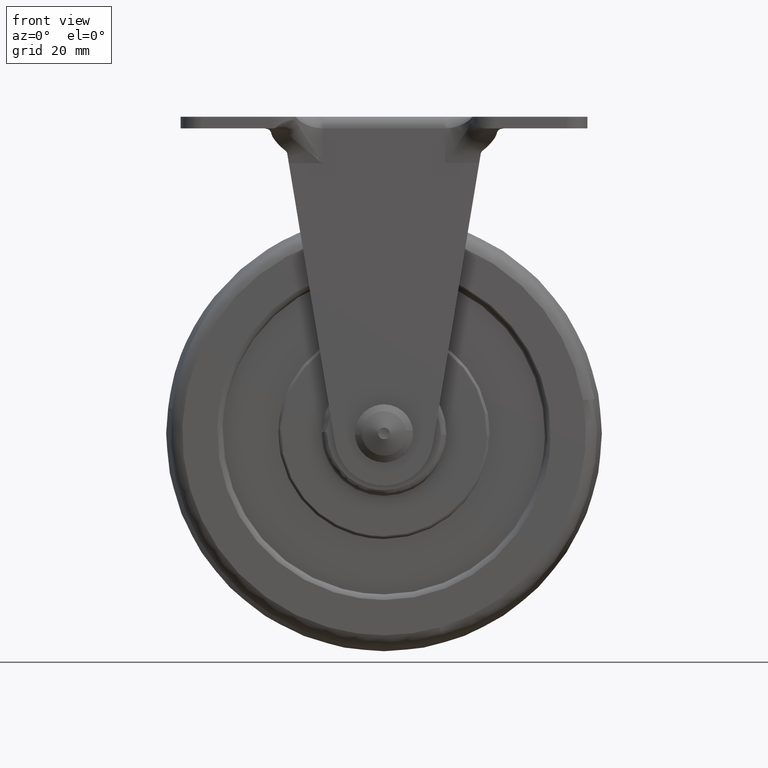
[diagram: clean part render]
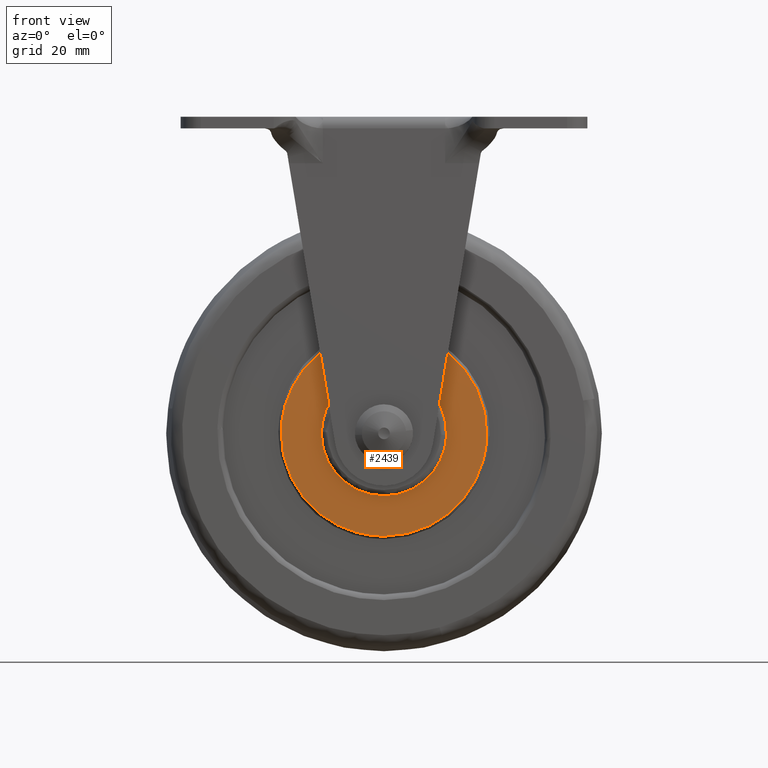
[diagram: same view with one face highlighted and labeled with its STEP entity id]
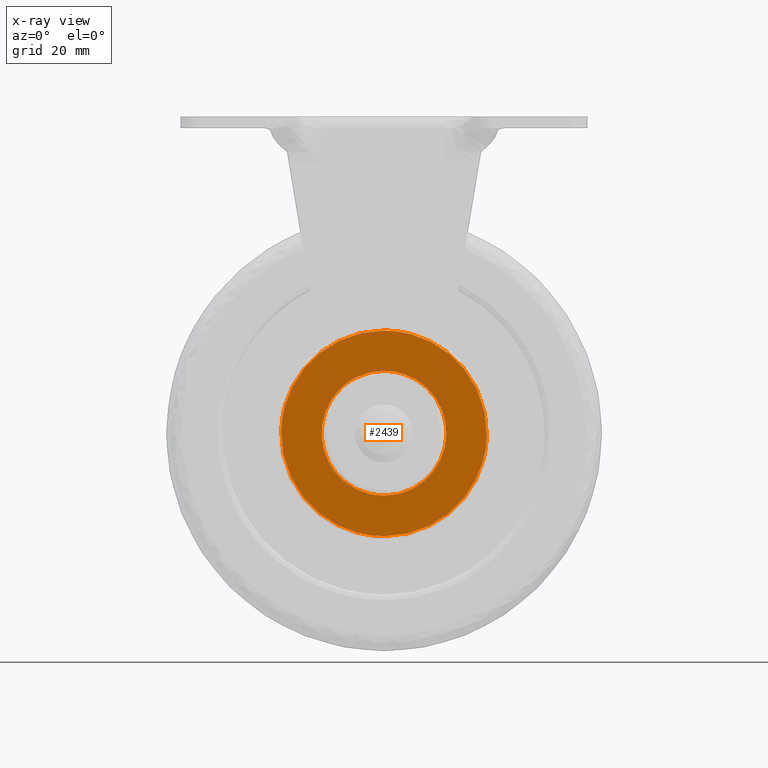
[diagram: x-ray of the same camera — body ghosted, the highlighted face saturated]
A machine part, front view. The second image highlights one B-rep face of the part: STEP entity #2439.
The next image is the same camera in x-ray: the body ghosted, the highlighted face saturated — about 0% of this face is hidden behind the body in this view.
In plain terms, the highlighted face is a freeform B-spline surface patch.
Its self-contained STEP definition (entity closure, byte-faithful):
#66=CARTESIAN_POINT('',(-7.034148768466096,-9.999999999999371,-8.129160541106042));
#67=VERTEX_POINT('',#66);
#68=CARTESIAN_POINT('',(0.0,-10.0,-10.750000000000000));
#69=VERTEX_POINT('',#68);
#70=CARTESIAN_POINT('',(-7.034148768466096,-9.999999999999369,-8.129160541106042));
#71=CARTESIAN_POINT('',(-4.005321057383338,-10.000000000000002,-10.750000000000000));
#72=CARTESIAN_POINT('',(0.0,-10.0,-10.750000000000000));
#80=(BOUNDED_CURVE()B_SPLINE_CURVE(2,(#70,#71,#72),.UNSPECIFIED.,.F.,.U.)B_SPLINE_CURVE_WITH_KNOTS((3,3),(0.885882167235958,1.0),.UNSPECIFIED.)CURVE()GEOMETRIC_REPRESENTATION_ITEM()RATIONAL_B_SPLINE_CURVE((0.854663306528764,0.866302642550898,1.0))REPRESENTATION_ITEM(''));
#81=EDGE_CURVE('',#67,#69,#80,.T.);
#83=CARTESIAN_POINT('',(0.0,-10.0,10.750000000000000));
#84=VERTEX_POINT('',#83);
#85=CARTESIAN_POINT('',(0.0,-10.0,-10.750000000000000));
#86=CARTESIAN_POINT('',(10.750000000000000,-10.000000000000002,-10.749999999999998));
#87=CARTESIAN_POINT('',(10.750000000000000,-10.0,1.211545E-015));
#88=CARTESIAN_POINT('',(10.750000000000000,-10.000000000000002,10.750000000000000));
#89=CARTESIAN_POINT('',(0.0,-10.0,10.750000000000000));
#97=(BOUNDED_CURVE()B_SPLINE_CURVE(2,(#85,#86,#87,#88,#89),.UNSPECIFIED.,.F.,.U.)B_SPLINE_CURVE_WITH_KNOTS((3,2,3),(0.0,0.250000000000000,0.500000000000000),.UNSPECIFIED.)CURVE()GEOMETRIC_REPRESENTATION_ITEM()RATIONAL_B_SPLINE_CURVE((1.0,0.707106781186548,1.0,0.707106781186548,1.0))REPRESENTATION_ITEM(''));
#98=EDGE_CURVE('',#69,#84,#97,.T.);
#100=CARTESIAN_POINT('',(-7.262594446545347,-10.0,7.925731632159172));
#101=VERTEX_POINT('',#100);
#102=CARTESIAN_POINT('',(0.0,-10.0,10.750000000000000));
#103=CARTESIAN_POINT('',(-4.180445921900126,-10.0,10.750000000000000));
#104=CARTESIAN_POINT('',(-7.262594446545346,-10.0,7.925731632159172));
#112=(BOUNDED_CURVE()B_SPLINE_CURVE(2,(#102,#103,#104),.UNSPECIFIED.,.F.,.U.)B_SPLINE_CURVE_WITH_KNOTS((3,3),(0.500000000000000,0.618415198215065),.UNSPECIFIED.)CURVE()GEOMETRIC_REPRESENTATION_ITEM()RATIONAL_B_SPLINE_CURVE((1.0,0.861267965753427,0.853959782179550))REPRESENTATION_ITEM(''));
#113=EDGE_CURVE('',#84,#101,#112,.T.);
#210=CARTESIAN_POINT('',(-7.262594446545347,-10.0,7.925731632159172));
#211=CARTESIAN_POINT('',(-10.750000000000000,-10.0,4.730113669008599));
#212=CARTESIAN_POINT('',(-10.750000000000000,-10.0,1.211545E-015));
#213=CARTESIAN_POINT('',(-10.750000000000000,-10.0,-4.913840800288691));
#214=CARTESIAN_POINT('',(-7.034148768466096,-9.999999999999369,-8.129160541106042));
#222=(BOUNDED_CURVE()B_SPLINE_CURVE(2,(#210,#211,#212,#213,#214),.UNSPECIFIED.,.F.,.U.)B_SPLINE_CURVE_WITH_KNOTS((3,2,3),(0.618415198215065,0.750000000000000,0.885882167235958),.UNSPECIFIED.)CURVE()GEOMETRIC_REPRESENTATION_ITEM()RATIONAL_B_SPLINE_CURVE((0.853959782179550,0.845838815433121,1.0,0.840804138635649,0.854663306528764))REPRESENTATION_ITEM(''));
#223=EDGE_CURVE('',#101,#67,#222,.T.);
#921=CARTESIAN_POINT('',(17.694411150012620,-10.000000000000060,-0.444802714477519));
#922=VERTEX_POINT('',#921);
#936=CARTESIAN_POINT('',(0.0,-10.0,-17.700001000000000));
#937=VERTEX_POINT('',#936);
#938=CARTESIAN_POINT('',(0.0,-10.0,-17.700001000000000));
#939=CARTESIAN_POINT('',(17.260649383575380,-10.0,-17.700001000000000));
#940=CARTESIAN_POINT('',(17.694411150012623,-10.000000000000055,-0.444802714477519));
#948=(BOUNDED_CURVE()B_SPLINE_CURVE(2,(#938,#939,#940),.UNSPECIFIED.,.F.,.U.)B_SPLINE_CURVE_WITH_KNOTS((3,3),(0.0,0.245579891769808),.UNSPECIFIED.)CURVE()GEOMETRIC_REPRESENTATION_ITEM()RATIONAL_B_SPLINE_CURVE((1.0,0.712285260094727,0.989826157681576))REPRESENTATION_ITEM(''));
#949=EDGE_CURVE('',#937,#922,#948,.T.);
#951=CARTESIAN_POINT('',(-17.694411150012620,-10.000000000000060,0.444802714477522));
#952=VERTEX_POINT('',#951);
#953=CARTESIAN_POINT('',(-17.694411150012627,-10.000000000000057,0.444802714477521));
#954=CARTESIAN_POINT('',(-17.700000999999997,-9.999999999999998,0.222436481150851));
#955=CARTESIAN_POINT('',(-17.700001000000000,-10.0,1.211545E-015));
#956=CARTESIAN_POINT('',(-17.700000999999997,-10.000000000000002,-17.700000999999997));
#957=CARTESIAN_POINT('',(0.0,-10.0,-17.700001000000000));
#965=(BOUNDED_CURVE()B_SPLINE_CURVE(2,(#953,#954,#955,#956,#957),.UNSPECIFIED.,.F.,.U.)B_SPLINE_CURVE_WITH_KNOTS((3,2,3),(0.745579891769808,0.750000000000000,1.0),.UNSPECIFIED.)CURVE()GEOMETRIC_REPRESENTATION_ITEM()RATIONAL_B_SPLINE_CURVE((0.989826157681576,0.994821521091820,1.0,0.707106781186548,1.0))REPRESENTATION_ITEM(''));
#966=EDGE_CURVE('',#952,#937,#965,.T.);
#1023=CARTESIAN_POINT('',(0.0,-10.0,17.700001000000000));
#1024=VERTEX_POINT('',#1023);
#1025=CARTESIAN_POINT('',(0.0,-10.0,17.700001000000000));
#1026=CARTESIAN_POINT('',(-17.260649383575323,-10.0,17.700001000000000));
#1027=CARTESIAN_POINT('',(-17.694411150012627,-10.000000000000057,0.444802714477522));
#1035=(BOUNDED_CURVE()B_SPLINE_CURVE(2,(#1025,#1026,#1027),.UNSPECIFIED.,.F.,.U.)B_SPLINE_CURVE_WITH_KNOTS((3,3),(0.500000000000000,0.745579891769807),.UNSPECIFIED.)CURVE()GEOMETRIC_REPRESENTATION_ITEM()RATIONAL_B_SPLINE_CURVE((1.0,0.712285260094728,0.989826157681575))REPRESENTATION_ITEM(''));
#1036=EDGE_CURVE('',#1024,#952,#1035,.T.);
#1038=CARTESIAN_POINT('',(17.694411150012627,-10.000000000000055,-0.444802714477519));
#1039=CARTESIAN_POINT('',(17.700000999999997,-9.999999999999998,-0.222436481150849));
#1040=CARTESIAN_POINT('',(17.700001000000000,-10.0,1.211545E-015));
#1041=CARTESIAN_POINT('',(17.700000999999997,-10.000000000000002,17.700000999999997));
#1042=CARTESIAN_POINT('',(0.0,-10.0,17.700001000000000));
#1050=(BOUNDED_CURVE()B_SPLINE_CURVE(2,(#1038,#1039,#1040,#1041,#1042),.UNSPECIFIED.,.F.,.U.)B_SPLINE_CURVE_WITH_KNOTS((3,2,3),(0.245579891769808,0.250000000000000,0.500000000000000),.UNSPECIFIED.)CURVE()GEOMETRIC_REPRESENTATION_ITEM()RATIONAL_B_SPLINE_CURVE((0.989826157681576,0.994821521091820,1.0,0.707106781186548,1.0))REPRESENTATION_ITEM(''));
#1051=EDGE_CURVE('',#922,#1024,#1050,.T.);
#2422=CARTESIAN_POINT('',(-19.462081964464861,-10.0,19.468231031287932));
#2423=CARTESIAN_POINT('',(-19.462081964464861,-10.0,-19.468231980789970));
#2424=CARTESIAN_POINT('',(19.462081015262680,-10.0,19.468231031287932));
#2425=CARTESIAN_POINT('',(19.462081015262680,-10.0,-19.468231980789970));
#2426=B_SPLINE_SURFACE_WITH_KNOTS('',1,1,((#2422,#2424),(#2423,#2425)),.UNSPECIFIED.,.F.,.F.,.U.,(2,2),(2,2),(0.0,38.936463012077887),(0.0,38.924162979727541),.UNSPECIFIED.);
#2427=ORIENTED_EDGE('',*,*,#949,.T.);
#2428=ORIENTED_EDGE('',*,*,#1051,.T.);
#2429=ORIENTED_EDGE('',*,*,#1036,.T.);
#2430=ORIENTED_EDGE('',*,*,#966,.T.);
#2431=EDGE_LOOP('',(#2427,#2428,#2429,#2430));
#2432=FACE_OUTER_BOUND('',#2431,.T.);
#2433=ORIENTED_EDGE('',*,*,#98,.F.);
#2434=ORIENTED_EDGE('',*,*,#81,.F.);
#2435=ORIENTED_EDGE('',*,*,#223,.F.);
#2436=ORIENTED_EDGE('',*,*,#113,.F.);
#2437=EDGE_LOOP('',(#2433,#2434,#2435,#2436));
#2438=FACE_BOUND('',#2437,.T.);
#2439=ADVANCED_FACE('',(#2432,#2438),#2426,.T.);